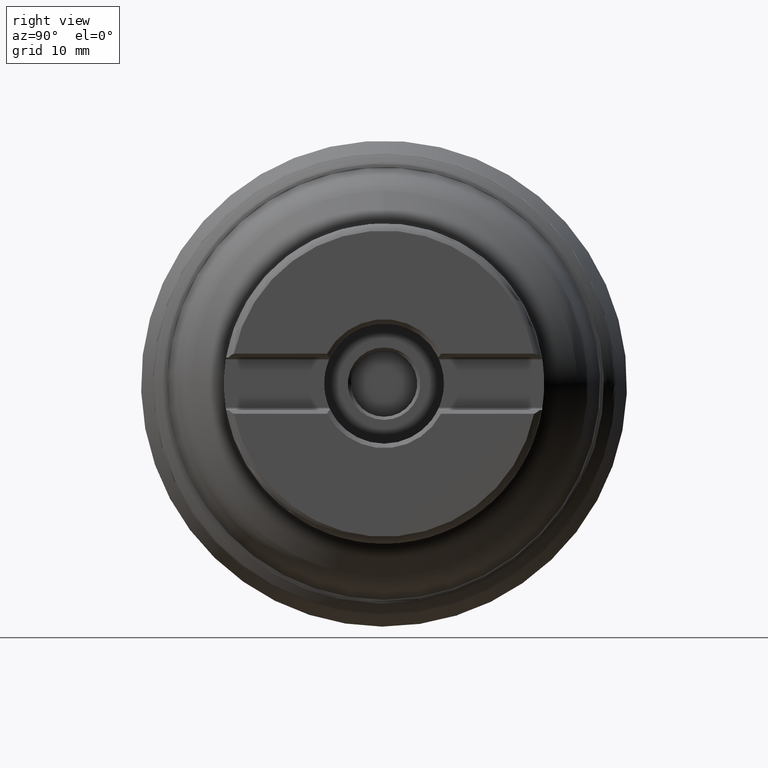
[diagram: clean part render]
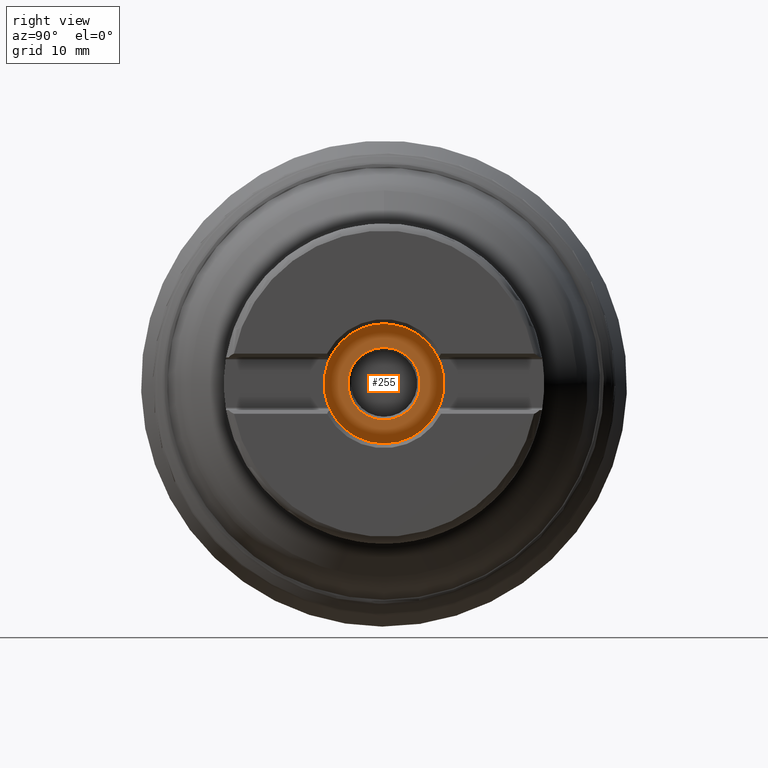
[diagram: same view with one face highlighted and labeled with its STEP entity id]
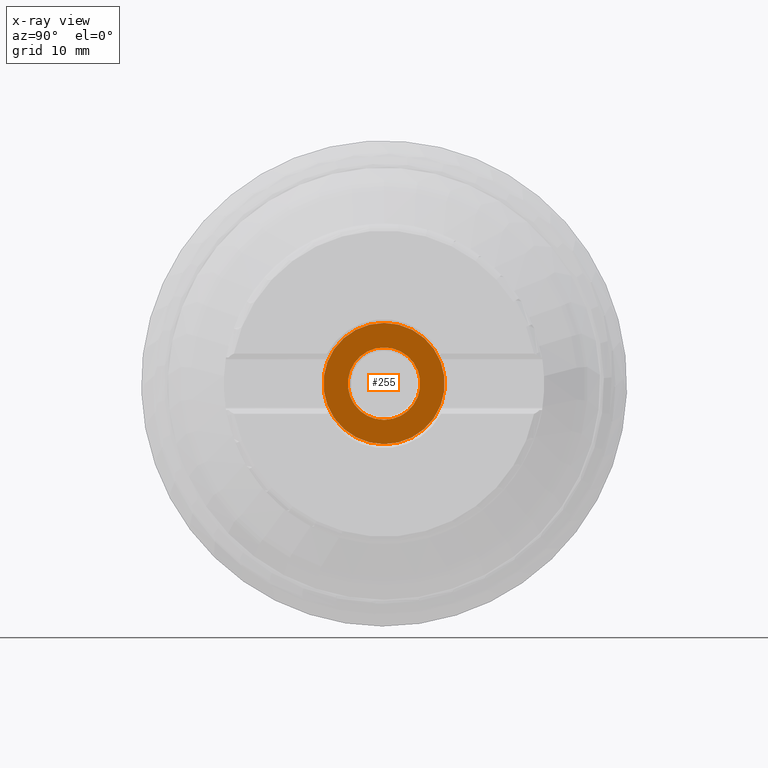
[diagram: x-ray of the same camera — body ghosted, the highlighted face saturated]
A machine part, right view. The second image highlights one B-rep face of the part: STEP entity #255.
The next image is the same camera in x-ray: the body ghosted, the highlighted face saturated — about 3% of this face is hidden behind the body in this view.
In plain terms, the highlighted planar face has unit normal (-1, -0, 0).
Its self-contained STEP definition (entity closure, byte-faithful):
#137=PLANE('',#1116);
#255=ADVANCED_FACE('',(#439,#440),#137,.F.);
#439=FACE_BOUND('',#535,.T.);
#440=FACE_BOUND('',#536,.T.);
#535=EDGE_LOOP('',(#671));
#536=EDGE_LOOP('',(#672));
#671=ORIENTED_EDGE('',*,*,#948,.T.);
#672=ORIENTED_EDGE('',*,*,#951,.T.);
#855=VERTEX_POINT('',#1710);
#858=VERTEX_POINT('',#1718);
#948=EDGE_CURVE('',#855,#855,#1039,.T.);
#951=EDGE_CURVE('',#858,#858,#1042,.T.);
#1039=CIRCLE('',#1105,9.625);
#1042=CIRCLE('',#1110,5.75);
#1105=AXIS2_PLACEMENT_3D('',#1709,#1277,#1278);
#1110=AXIS2_PLACEMENT_3D('',#1717,#1287,#1288);
#1116=AXIS2_PLACEMENT_3D('',#1726,#1299,#1300);
#1277=DIRECTION('',(1.,1.47104550762833E-15,0.));
#1278=DIRECTION('',(0.,0.,-1.));
#1287=DIRECTION('',(-1.,-1.47104550762833E-15,0.));
#1288=DIRECTION('',(0.,0.,-1.));
#1299=DIRECTION('',(-1.,-1.47104550762833E-15,0.));
#1300=DIRECTION('',(0.,0.,-1.));
#1709=CARTESIAN_POINT('',(20.95,-2.80234169203197E-14,0.));
#1710=CARTESIAN_POINT('',(20.95,-2.80234169203197E-14,-9.625));
#1717=CARTESIAN_POINT('',(20.95,-2.80234169203197E-14,0.));
#1718=CARTESIAN_POINT('',(20.95,-2.80234169203197E-14,-5.75));
#1726=CARTESIAN_POINT('',(20.95,-5.25000000000003,0.));